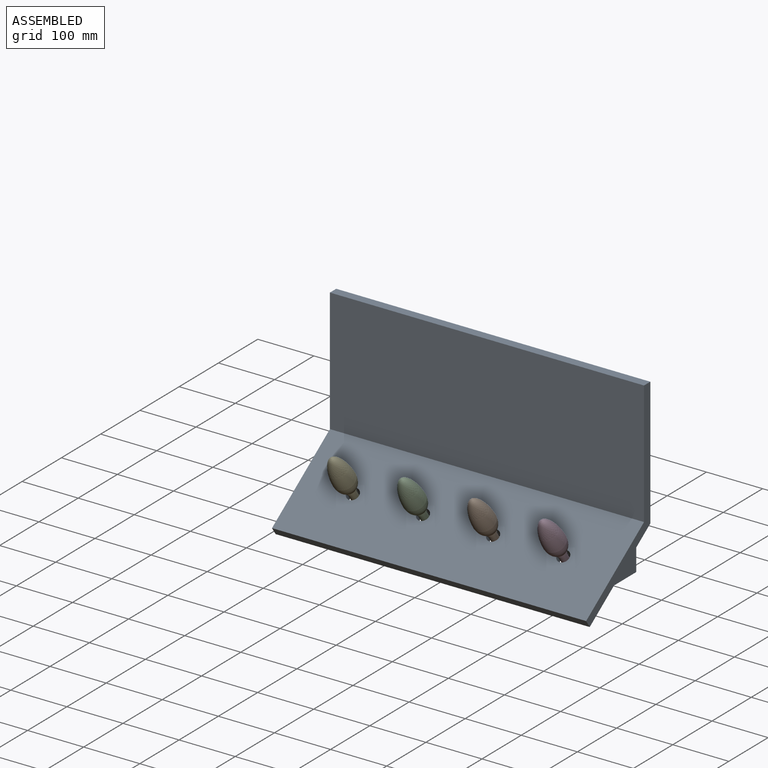
[diagram: assembled view]
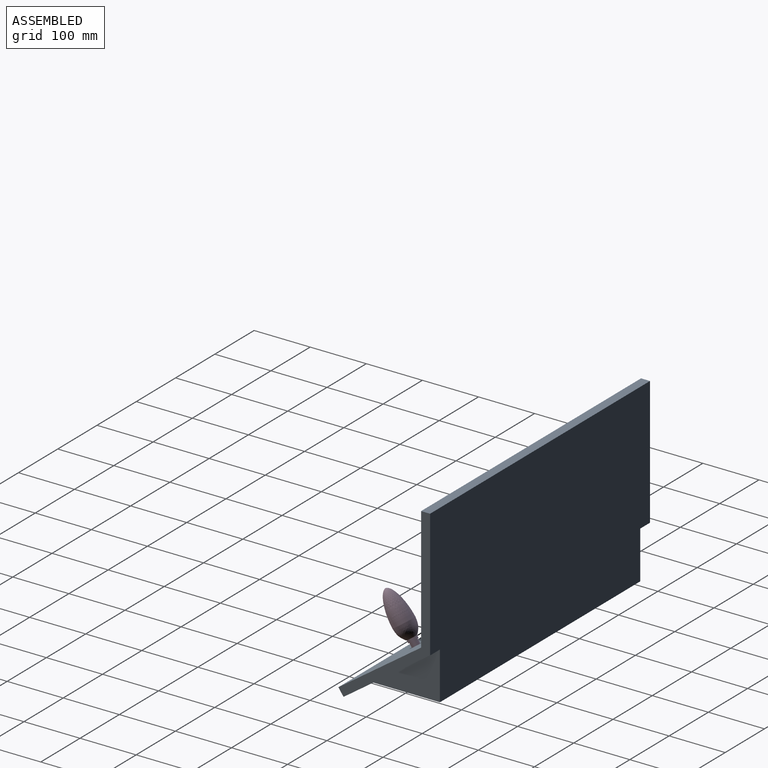
[diagram: assembled view, second angle]
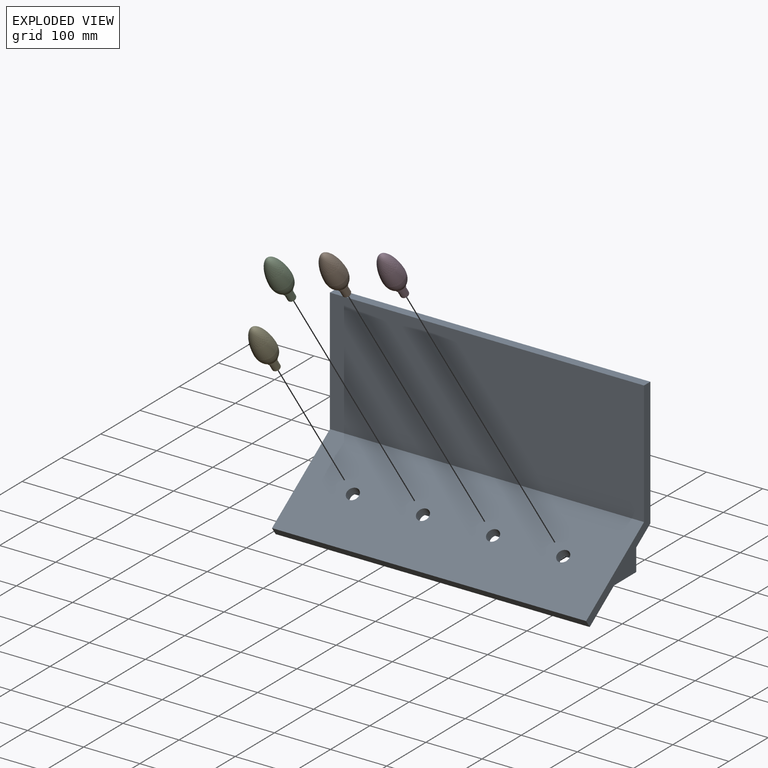
[diagram: exploded view]
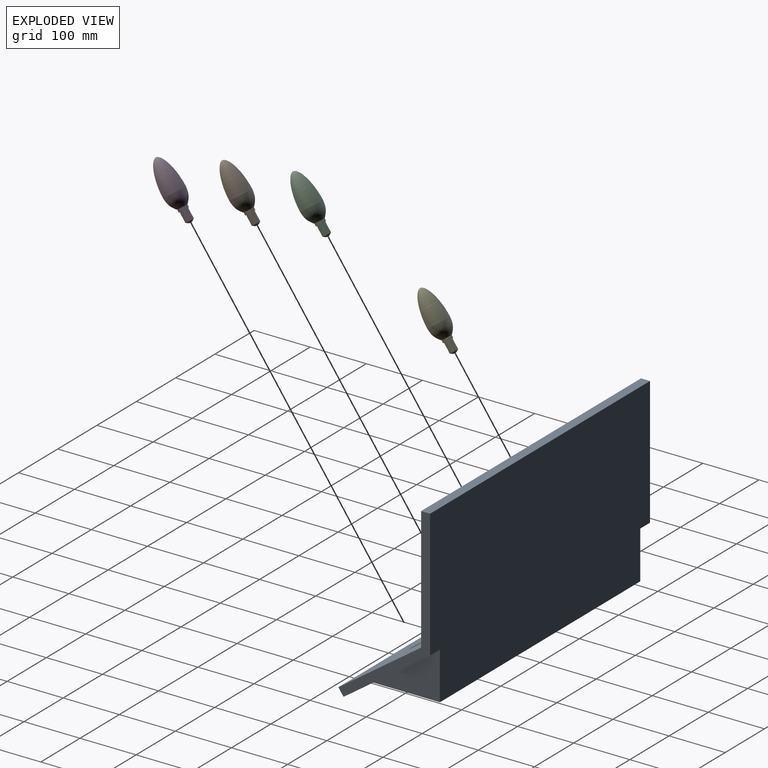
[diagram: exploded view, second angle]
ASSEMBLY  parts=5 mates=4
PART A: 18 faces, bbox 560x163.4x336.4 mm
  f0: plane 560x154.27mm, normal (0,0.57,-0.82), area 89350.4mm2, adj f1,f5,f6,f7,f8,f9,f10,f11
  f1: plane 560x313.33mm, normal (0,1,0), area 171214.3mm2, adj f0,f2,f6,f7,f8,f9,f11
  f2: plane 560x16mm, normal (0,0,1), area 8960mm2, adj f1,f3,f6,f7
  f3: plane 560x220mm, normal (0,-1,0), area 123200mm2, adj f2,f4,f6,f7
  f4: plane 560x147.45mm, normal (0,-0.57,0.82), area 99279.5mm2, adj f3,f5,f6,f7,f14,f15,f16,f17
  f5: plane 560x13.11mm, normal (0,-0.82,-0.57), area 8960mm2, adj f0,f4,f6,f7
  f6: plane 336.35x163.45mm, normal (1,0,0), area 6533.3mm2, adj f0,f1,f2,f3,f4,f5
  f7: plane 336.35x163.45mm, normal (-1,0,0), area 6533.3mm2, adj f0,f1,f2,f3,f4,f5
  f8: plane 121.39x85mm, normal (-1,0,0), area 5159.2mm2, adj f0,f1,f11
  f9: plane 121.39x85mm, normal (1,0,0), area 5159.2mm2, adj f0,f1,f11
  f10: plane 474x73.8mm, normal (0,-1,0), area 34979.6mm2, adj f0,f11,f12,f13
  f11: plane 510x121.39mm, normal (0,0,-1), area 11954.1mm2, adj f0,f1,f8,f9,f10,f12,f13
  f12: plane 105.39x73.8mm, normal (1,0,0), area 3888.8mm2, adj f0,f10,f11
  f13: plane 105.39x73.8mm, normal (-1,0,0), area 3888.8mm2, adj f0,f10,f11
  f14: cylinder r=11mm len=27.2mm, axis (0,-0.57,0.82), area 1105.8mm2, adj f0,f4
  f15: cylinder r=11mm len=27.2mm, axis (0,-0.57,0.82), area 1105.8mm2, adj f0,f4
  f16: cylinder r=11mm len=27.2mm, axis (0,-0.57,0.82), area 1105.8mm2, adj f0,f4
  f17: cylinder r=11mm len=27.2mm, axis (0,-0.57,0.82), area 1105.8mm2, adj f0,f4
PART B: 8 faces, bbox 38x38x51 mm
  f0: revolved ~38x38mm, area 2650.7mm2, adj f1
  f1: cone r=9.5mm half-angle=60deg, axis (0,0,1), area 65.3mm2, adj f0,f2
  f2: cylinder r=8.5mm len=17mm, axis (0,0,-1), area 267mm2, adj f1,f3
  f3: plane 17x17mm, normal (0,0,-1), area 73mm2, adj f2,f4
  f4: cylinder r=7mm len=18mm, axis (0,0,-1), area 791.7mm2, adj f3,f5
  f5: cone r=7mm half-angle=56.3deg, axis (0,0,1), area 161.4mm2, adj f4,f6
  f6: plane 5x5mm, normal (0,0,-1), area 19.6mm2, adj f5
  f7: revolved ~38x19mm, area 0mm2
PART C: same geometry as B
PART D: same geometry as B
PART E: same geometry as B
PLACE A t=(-800,0,-74.5)mm
PLACE B rot(axis=(1,0,0),35deg) t=(-87.5,-83.99,-125.98)mm
PLACE C rot(axis=(1,0,0),35deg) t=(-212.5,-83.99,-125.98)mm
PLACE D rot(axis=(1,0,0),35deg) t=(37.5,-83.99,-125.98)mm
PLACE E rot(axis=(1,0,0),35deg) t=(-337.5,-83.99,-125.98)mm
MATE fastened D.f1 <-> A.f14  axis (0,0.57,-0.82) through (187.5,-94.31,-111.24)mm
MATE fastened C.f1 <-> A.f16  axis (0,0.57,-0.82) through (-62.5,-94.31,-111.24)mm
MATE fastened E.f1 <-> A.f17  axis (0,0.57,-0.82) through (-187.5,-94.31,-111.24)mm
MATE fastened B.f1 <-> A.f15  axis (0,0.57,-0.82) through (62.5,-94.31,-111.24)mm
